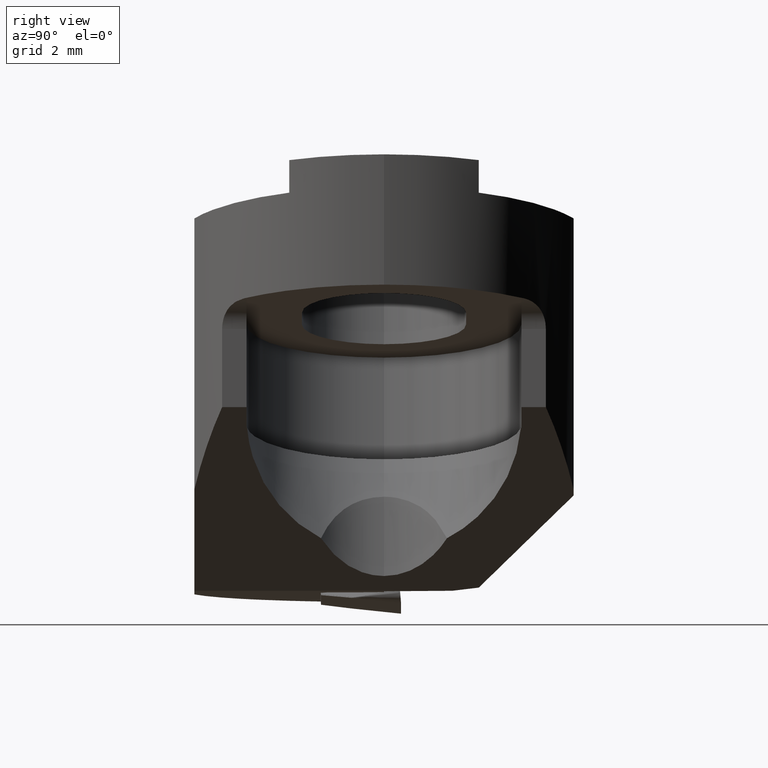
[diagram: clean part render]
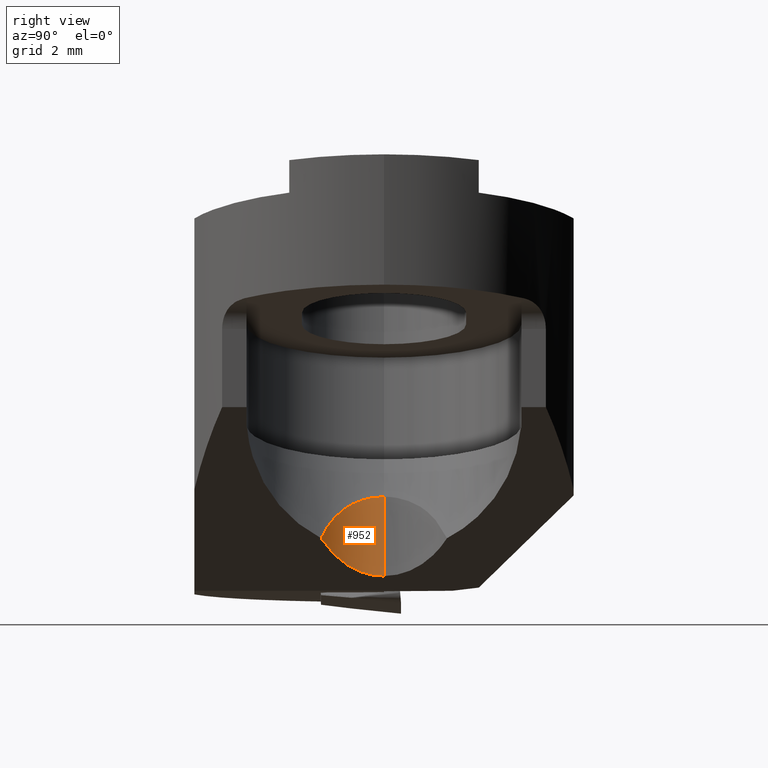
[diagram: same view with one face highlighted and labeled with its STEP entity id]
A machine part, right view. The second image highlights one B-rep face of the part: STEP entity #952.
In plain terms, the highlighted cylindrical surface (partial cylindrical patch) has radius 2.55 mm, axis along (-0.2419, -0, 0.9703).
Its self-contained STEP definition (entity closure, byte-faithful):
#942=VERTEX_POINT('NONE',#2516);
#952=ADVANCED_FACE('NONE',(#2526),#2527,.F.);
#1030=VERTEX_POINT('',#2606);
#1564=EDGE_CURVE('NONE',#2156,#942,#3202,.T.);
#1632=EDGE_CURVE('',#1030,#2156,#3276,.T.);
#1966=EDGE_CURVE('NONE',#942,#1030,#3643,.T.);
#2156=VERTEX_POINT('',#3849);
#2516=CARTESIAN_POINT('',(1.60369742378944,-1.99332029294936,-12.1505178123049));
#2526=FACE_OUTER_BOUND('',#4928,.T.);
#2527=CYLINDRICAL_SURFACE('',#4929,2.55);
#2606=CARTESIAN_POINT('',(0.912953401339686,-3.12274620224704E-016,-13.3469215542123));
#3202=B_SPLINE_CURVE_WITH_KNOTS('',3,(#5927,#5928,#5929,#5930,#5931,#5932,#5933,#5934,#5935,#5936,#5937,#5938,#5939,#5940,#5941,#5942,#5943,#5944,#5945,#5946,#5947,#5948,#5949,#5950,#5951,#5952,#5953,#5954,#5955,#5956),.UNSPECIFIED.,.F.,.F.,(4,2,2,2,2,2,2,2,2,2,2,2,2,2,4),(0.997358571564992,1.99471714312998,2.99207571469498,3.98943428625997,4.36547353431711,4.74151278237425,5.11755203043139,5.49359127848853,5.86963052654567,6.24566977460281,6.62170902265995,6.99774827071709,7.99510684228208,8.99246541384707,9.98982398541206),.UNSPECIFIED.);
#3276=LINE('',#6077,#6078);
#3643=ELLIPSE('',#6569,3.67086917604562,2.55);
#3849=CARTESIAN_POINT('',(0.287324301209126,5.67253356916973E-015,-10.8376602879434));
#4928=EDGE_LOOP('',(#7410,#7411,#7412));
#4929=AXIS2_PLACEMENT_3D('',#7413,#7414,#7415);
#5927=CARTESIAN_POINT('',(2.64826680330781,2.38433174713413,-13.503597308754));
#5928=CARTESIAN_POINT('',(2.44707068783097,2.33652503231469,-13.2177743789398));
#5929=CARTESIAN_POINT('',(2.23752135000656,2.27422681067698,-12.9343375335811));
#5930=CARTESIAN_POINT('',(1.81350166747418,2.10677617215468,-12.3951125175364));
#5931=CARTESIAN_POINT('',(1.59912140741207,2.00186660898112,-12.1396363559176));
#5932=CARTESIAN_POINT('',(1.18240742623136,1.7295465262708,-11.6764532788689));
#5933=CARTESIAN_POINT('',(0.979683880326474,1.56303596885471,-11.4685684986986));
#5934=CARTESIAN_POINT('',(0.728769012102436,1.2651902312919,-11.2279239058464));
#5935=CARTESIAN_POINT('',(0.660628756835734,1.17317020385322,-11.1644721105516));
#5936=CARTESIAN_POINT('',(0.53576402238228,0.970896138954754,-11.0510715435311));
#5937=CARTESIAN_POINT('',(0.479088649076588,0.860610941220543,-11.0011242900406));
#5938=CARTESIAN_POINT('',(0.385596368192107,0.627458279112853,-10.9201418144145));
#5939=CARTESIAN_POINT('',(0.348712526992928,0.504311914544149,-10.8889972456683));
#5940=CARTESIAN_POINT('',(0.299566223533782,0.253257051856657,-10.8477622134545));
#5941=CARTESIAN_POINT('',(0.287324301209125,0.125346416019059,-10.8376602879434));
#5942=CARTESIAN_POINT('',(0.287324301209124,-0.125346416019035,-10.8376602879434));
#5943=CARTESIAN_POINT('',(0.29956622353378,-0.253257051856635,-10.8477622134545));
#5944=CARTESIAN_POINT('',(0.348712526992925,-0.504311914544127,-10.8889972456683));
#5945=CARTESIAN_POINT('',(0.385596368192102,-0.627458279112832,-10.9201418144145));
#5946=CARTESIAN_POINT('',(0.479088649076582,-0.860610941220523,-11.0011242900406));
#5947=CARTESIAN_POINT('',(0.535764022382274,-0.970896138954734,-11.0510715435311));
#5948=CARTESIAN_POINT('',(0.660628756835727,-1.1731702038532,-11.1644721105516));
#5949=CARTESIAN_POINT('',(0.728769012102428,-1.26519023129188,-11.2279239058464));
#5950=CARTESIAN_POINT('',(0.979683880326463,-1.56303596885469,-11.4685684986986));
#5951=CARTESIAN_POINT('',(1.18240742623135,-1.72954652627078,-11.6764532788689));
#5952=CARTESIAN_POINT('',(1.59912140741205,-2.0018666089811,-12.1396363559176));
#5953=CARTESIAN_POINT('',(1.81350166747417,-2.10677617215466,-12.3951125175364));
#5954=CARTESIAN_POINT('',(2.23752135000654,-2.27422681067697,-12.9343375335812));
#5955=CARTESIAN_POINT('',(2.44707068783095,-2.33652503231468,-13.2177743789398));
#5956=CARTESIAN_POINT('',(2.64826680330779,-2.38433174713413,-13.5035973087541));
#6077=CARTESIAN_POINT('',(0.620300681716311,-3.12274620224703E-016,-12.1731556061994));
#6078=VECTOR('',#8300,1.0);
#6569=AXIS2_PLACEMENT_3D('',#8722,#8723,#8724);
#7410=ORIENTED_EDGE('',*,*,#1632,.T.);
#7411=ORIENTED_EDGE('',*,*,#1564,.T.);
#7412=ORIENTED_EDGE('',*,*,#1966,.T.);
#7413=CARTESIAN_POINT('',(12.9192127452991,0.0,-50.9608056032339));
#7414=DIRECTION('',(-0.24192189559966,-0.0,0.970295726275998));
#7415=DIRECTION('',(0.970295726275998,0.0,0.24192189559966));
#8300=DIRECTION('',(-0.24192189559966,-0.0,0.970295726275998));
#8722=CARTESIAN_POINT('',(2.7483879893625,0.0,-10.1678555937876));
#8723=DIRECTION('',(0.866025403784438,0.0,-0.500000000000002));
#8724=DIRECTION('',(0.500000000000002,0.0,0.866025403784438));